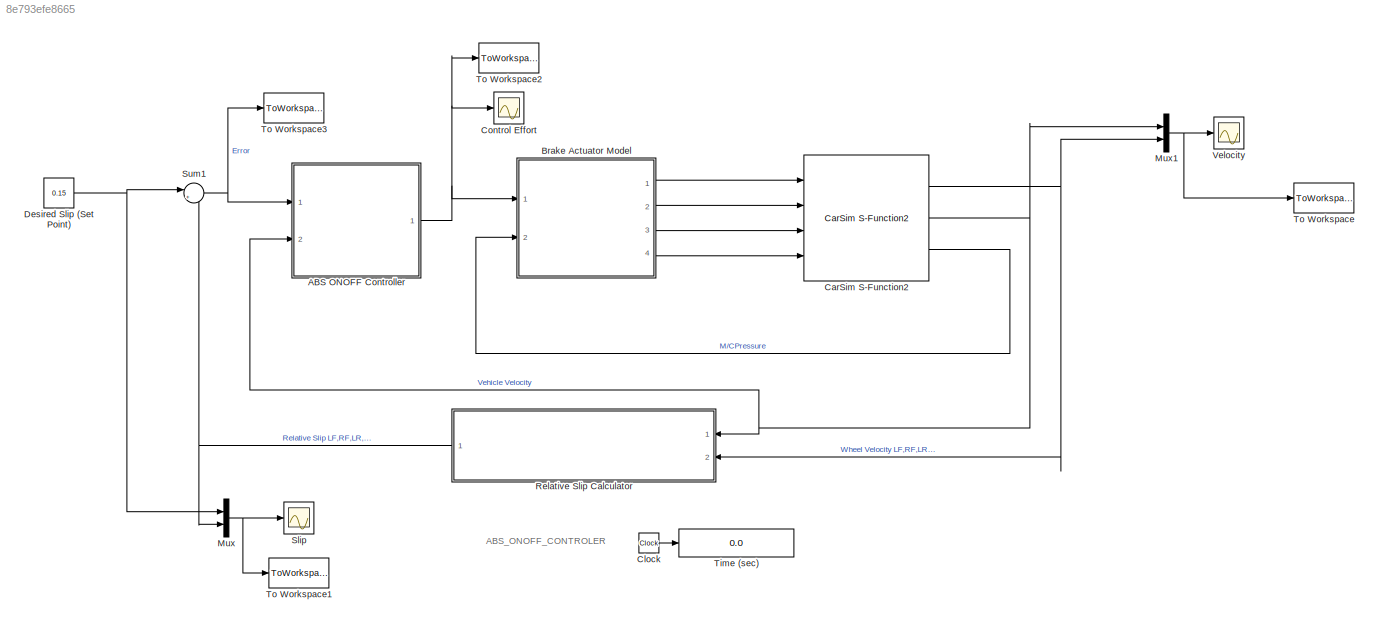
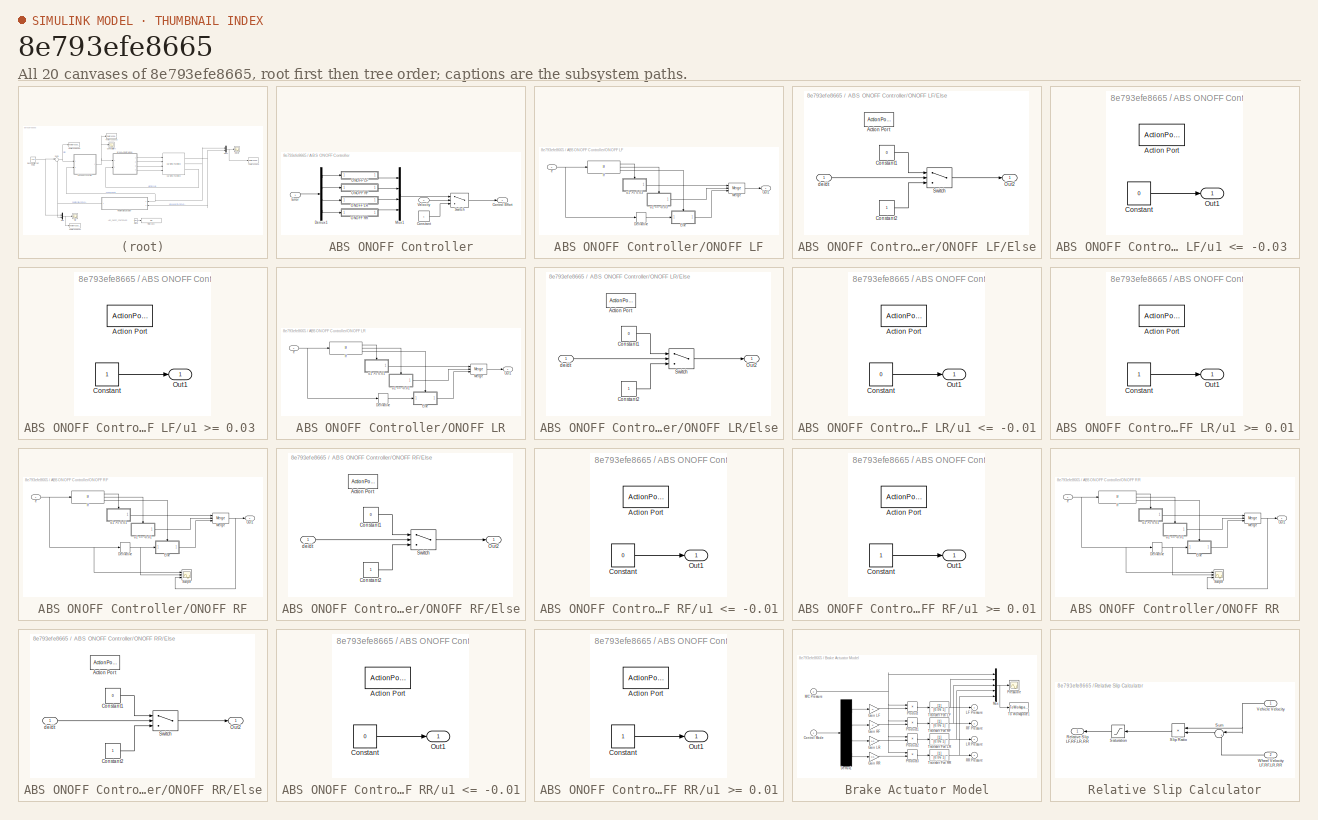
[diagram: thumbnail index - all 20 canvases of the model, root first then tree order]
MODEL slx_8e793efe8665
KIND model
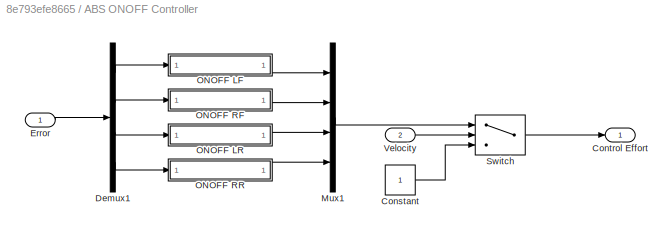
BLOCK [SubSystem] ABS ONOFF Controller
  Ports = [2, 1]
  RequestExecContextInheritance = off
BLOCK [Constant] ABS ONOFF Controller/Constant
BLOCK [Outport] ABS ONOFF Controller/Control Effort
  IconDisplay = Port number
BLOCK [Demux] ABS ONOFF Controller/Demux1
  Ports = [1, 4]
BLOCK [Inport] ABS ONOFF Controller/Error
  IconDisplay = Port number
BLOCK [Mux] ABS ONOFF Controller/Mux1
  DisplayOption = bar
  Ports = [4, 1]
BLOCK [SubSystem] ABS ONOFF Controller/ONOFF LF
  Ports = [1, 1]
  RequestExecContextInheritance = off
BLOCK [Derivative] ABS ONOFF Controller/ONOFF LF/Derivative
BLOCK [SubSystem] ABS ONOFF Controller/ONOFF LF/Else
  Ports = [1, 1, 0, 0, 0, 0, 0, 1]
  RequestExecContextInheritance = off
  TreatAsAtomicUnit = on
BLOCK [ActionPort] ABS ONOFF Controller/ONOFF LF/Else/Action Port
  ActionType = else
BLOCK [Constant] ABS ONOFF Controller/ONOFF LF/Else/Constant1
  Value = 0
BLOCK [Constant] ABS ONOFF Controller/ONOFF LF/Else/Constant2
BLOCK [Outport] ABS ONOFF Controller/ONOFF LF/Else/Out2
  IconDisplay = Port number
BLOCK [Switch] ABS ONOFF Controller/ONOFF LF/Else/Switch
  Criteria = u2 > Threshold
  InputSameDT = off
  SaturateOnIntegerOverflow = off
BLOCK [Inport] ABS ONOFF Controller/ONOFF LF/Else/de//dt
  IconDisplay = Port number
BLOCK [If] ABS ONOFF Controller/ONOFF LF/If
  ElseIfExpressions = u1 <= -0.03
  IfExpression = u1 >= 0.03
  Ports = [1, 3]
BLOCK [Merge] ABS ONOFF Controller/ONOFF LF/Merge
  Inputs = 3
  Ports = [3, 1]
BLOCK [Outport] ABS ONOFF Controller/ONOFF LF/Out1
  IconDisplay = Port number
BLOCK [Inport] ABS ONOFF Controller/ONOFF LF/e
  IconDisplay = Port number
BLOCK [SubSystem] ABS ONOFF Controller/ONOFF LF/u1 <= -0.03 
  Ports = [0, 1, 0, 0, 0, 0, 0, 1]
  RequestExecContextInheritance = off
  TreatAsAtomicUnit = on
BLOCK [ActionPort] ABS ONOFF Controller/ONOFF LF/u1 <= -0.03 /Action Port
  ActionType = elseif
BLOCK [Constant] ABS ONOFF Controller/ONOFF LF/u1 <= -0.03 /Constant
  Value = 0
BLOCK [Outport] ABS ONOFF Controller/ONOFF LF/u1 <= -0.03 /Out1
  IconDisplay = Port number
BLOCK [SubSystem] ABS ONOFF Controller/ONOFF LF/u1 >= 0.03 
  Ports = [0, 1, 0, 0, 0, 0, 0, 1]
  RequestExecContextInheritance = off
  TreatAsAtomicUnit = on
BLOCK [ActionPort] ABS ONOFF Controller/ONOFF LF/u1 >= 0.03 /Action Port
  ActionType = then
BLOCK [Constant] ABS ONOFF Controller/ONOFF LF/u1 >= 0.03 /Constant
BLOCK [Outport] ABS ONOFF Controller/ONOFF LF/u1 >= 0.03 /Out1
  IconDisplay = Port number
BLOCK [SubSystem] ABS ONOFF Controller/ONOFF LR
  Ports = [1, 1]
  RequestExecContextInheritance = off
BLOCK [Derivative] ABS ONOFF Controller/ONOFF LR/Derivative
BLOCK [SubSystem] ABS ONOFF Controller/ONOFF LR/Else
  Ports = [1, 1, 0, 0, 0, 0, 0, 1]
  RequestExecContextInheritance = off
  TreatAsAtomicUnit = on
BLOCK [ActionPort] ABS ONOFF Controller/ONOFF LR/Else/Action Port
  ActionType = else
BLOCK [Constant] ABS ONOFF Controller/ONOFF LR/Else/Constant1
  Value = 0
BLOCK [Constant] ABS ONOFF Controller/ONOFF LR/Else/Constant2
BLOCK [Outport] ABS ONOFF Controller/ONOFF LR/Else/Out2
  IconDisplay = Port number
BLOCK [Switch] ABS ONOFF Controller/ONOFF LR/Else/Switch
  Criteria = u2 > Threshold
  InputSameDT = off
  SaturateOnIntegerOverflow = off
BLOCK [Inport] ABS ONOFF Controller/ONOFF LR/Else/de//dt
  IconDisplay = Port number
BLOCK [If] ABS ONOFF Controller/ONOFF LR/If
  ElseIfExpressions = u1 <= -0.05
  IfExpression = u1 >= 0.05
  Ports = [1, 3]
BLOCK [Merge] ABS ONOFF Controller/ONOFF LR/Merge
  Inputs = 3
  Ports = [3, 1]
BLOCK [Outport] ABS ONOFF Controller/ONOFF LR/Out1
  IconDisplay = Port number
BLOCK [Inport] ABS ONOFF Controller/ONOFF LR/e
  IconDisplay = Port number
BLOCK [SubSystem] ABS ONOFF Controller/ONOFF LR/u1 <= -0.01
  Ports = [0, 1, 0, 0, 0, 0, 0, 1]
  RequestExecContextInheritance = off
  TreatAsAtomicUnit = on
BLOCK [ActionPort] ABS ONOFF Controller/ONOFF LR/u1 <= -0.01/Action Port
  ActionType = elseif
BLOCK [Constant] ABS ONOFF Controller/ONOFF LR/u1 <= -0.01/Constant
  Value = 0
BLOCK [Outport] ABS ONOFF Controller/ONOFF LR/u1 <= -0.01/Out1
  IconDisplay = Port number
BLOCK [SubSystem] ABS ONOFF Controller/ONOFF LR/u1 >= 0.01
  Ports = [0, 1, 0, 0, 0, 0, 0, 1]
  RequestExecContextInheritance = off
  TreatAsAtomicUnit = on
BLOCK [ActionPort] ABS ONOFF Controller/ONOFF LR/u1 >= 0.01/Action Port
  ActionType = then
BLOCK [Constant] ABS ONOFF Controller/ONOFF LR/u1 >= 0.01/Constant
BLOCK [Outport] ABS ONOFF Controller/ONOFF LR/u1 >= 0.01/Out1
  IconDisplay = Port number
BLOCK [SubSystem] ABS ONOFF Controller/ONOFF RF
  Ports = [1, 1]
  RequestExecContextInheritance = off
BLOCK [Derivative] ABS ONOFF Controller/ONOFF RF/Derivative
BLOCK [SubSystem] ABS ONOFF Controller/ONOFF RF/Else
  Ports = [1, 1, 0, 0, 0, 0, 0, 1]
  RequestExecContextInheritance = off
  TreatAsAtomicUnit = on
BLOCK [ActionPort] ABS ONOFF Controller/ONOFF RF/Else/Action Port
  ActionType = else
BLOCK [Constant] ABS ONOFF Controller/ONOFF RF/Else/Constant1
  Value = 0
BLOCK [Constant] ABS ONOFF Controller/ONOFF RF/Else/Constant2
BLOCK [Outport] ABS ONOFF Controller/ONOFF RF/Else/Out2
  IconDisplay = Port number
BLOCK [Switch] ABS ONOFF Controller/ONOFF RF/Else/Switch
  Criteria = u2 > Threshold
  InputSameDT = off
  SaturateOnIntegerOverflow = off
BLOCK [Inport] ABS ONOFF Controller/ONOFF RF/Else/de//dt
  IconDisplay = Port number
BLOCK [If] ABS ONOFF Controller/ONOFF RF/If
  ElseIfExpressions = u1 <= -0.05
  IfExpression = u1 >= 0.05
  Ports = [1, 3]
BLOCK [Merge] ABS ONOFF Controller/ONOFF RF/Merge
  Inputs = 3
  Ports = [3, 1]
BLOCK [Outport] ABS ONOFF Controller/ONOFF RF/Out1
  IconDisplay = Port number
BLOCK [Scope] ABS ONOFF Controller/ONOFF RF/Scope
  DataFormat = StructureWithTime
  Floating = off
  LimitDataPoints = off
  NumInputPorts = 3
  Ports = [3]
  SampleTime = 0
  SaveName = ScopeData2
  ShowLegends = off
  YMax = 0.2~0.005~1
  YMin = -0.15~-0.012~1
BLOCK [Inport] ABS ONOFF Controller/ONOFF RF/e
  IconDisplay = Port number
BLOCK [SubSystem] ABS ONOFF Controller/ONOFF RF/u1 <= -0.01
  Ports = [0, 1, 0, 0, 0, 0, 0, 1]
  RequestExecContextInheritance = off
  TreatAsAtomicUnit = on
BLOCK [ActionPort] ABS ONOFF Controller/ONOFF RF/u1 <= -0.01/Action Port
  ActionType = elseif
BLOCK [Constant] ABS ONOFF Controller/ONOFF RF/u1 <= -0.01/Constant
  Value = 0
BLOCK [Outport] ABS ONOFF Controller/ONOFF RF/u1 <= -0.01/Out1
  IconDisplay = Port number
BLOCK [SubSystem] ABS ONOFF Controller/ONOFF RF/u1 >= 0.01
  Ports = [0, 1, 0, 0, 0, 0, 0, 1]
  RequestExecContextInheritance = off
  TreatAsAtomicUnit = on
BLOCK [ActionPort] ABS ONOFF Controller/ONOFF RF/u1 >= 0.01/Action Port
  ActionType = then
BLOCK [Constant] ABS ONOFF Controller/ONOFF RF/u1 >= 0.01/Constant
BLOCK [Outport] ABS ONOFF Controller/ONOFF RF/u1 >= 0.01/Out1
  IconDisplay = Port number
BLOCK [SubSystem] ABS ONOFF Controller/ONOFF RR
  Ports = [1, 1]
  RequestExecContextInheritance = off
BLOCK [Derivative] ABS ONOFF Controller/ONOFF RR/Derivative
BLOCK [SubSystem] ABS ONOFF Controller/ONOFF RR/Else
  Ports = [1, 1, 0, 0, 0, 0, 0, 1]
  RequestExecContextInheritance = off
  TreatAsAtomicUnit = on
BLOCK [ActionPort] ABS ONOFF Controller/ONOFF RR/Else/Action Port
  ActionType = else
BLOCK [Constant] ABS ONOFF Controller/ONOFF RR/Else/Constant1
  Value = 0
BLOCK [Constant] ABS ONOFF Controller/ONOFF RR/Else/Constant2
BLOCK [Outport] ABS ONOFF Controller/ONOFF RR/Else/Out2
  IconDisplay = Port number
BLOCK [Switch] ABS ONOFF Controller/ONOFF RR/Else/Switch
  Criteria = u2 > Threshold
  InputSameDT = off
  SaturateOnIntegerOverflow = off
BLOCK [Inport] ABS ONOFF Controller/ONOFF RR/Else/de//dt
  IconDisplay = Port number
BLOCK [If] ABS ONOFF Controller/ONOFF RR/If
  ElseIfExpressions = u1 <= -0.05
  IfExpression = u1 >= 0.05
  Ports = [1, 3]
BLOCK [Merge] ABS ONOFF Controller/ONOFF RR/Merge
  Inputs = 3
  Ports = [3, 1]
BLOCK [Outport] ABS ONOFF Controller/ONOFF RR/Out1
  IconDisplay = Port number
BLOCK [Scope] ABS ONOFF Controller/ONOFF RR/Scope
  DataFormat = StructureWithTime
  Floating = off
  LimitDataPoints = off
  NumInputPorts = 3
  Ports = [3]
  SampleTime = 0
  SaveName = ScopeData2
  ShowLegends = off
  YMax = 0.2~0.005~1.05
  YMin = -0.15~-0.012~0.95
BLOCK [Inport] ABS ONOFF Controller/ONOFF RR/e
  IconDisplay = Port number
BLOCK [SubSystem] ABS ONOFF Controller/ONOFF RR/u1 <= -0.01
  Ports = [0, 1, 0, 0, 0, 0, 0, 1]
  RequestExecContextInheritance = off
  TreatAsAtomicUnit = on
BLOCK [ActionPort] ABS ONOFF Controller/ONOFF RR/u1 <= -0.01/Action Port
  ActionType = elseif
BLOCK [Constant] ABS ONOFF Controller/ONOFF RR/u1 <= -0.01/Constant
  Value = 0
BLOCK [Outport] ABS ONOFF Controller/ONOFF RR/u1 <= -0.01/Out1
  IconDisplay = Port number
BLOCK [SubSystem] ABS ONOFF Controller/ONOFF RR/u1 >= 0.01
  Ports = [0, 1, 0, 0, 0, 0, 0, 1]
  RequestExecContextInheritance = off
  TreatAsAtomicUnit = on
BLOCK [ActionPort] ABS ONOFF Controller/ONOFF RR/u1 >= 0.01/Action Port
  ActionType = then
BLOCK [Constant] ABS ONOFF Controller/ONOFF RR/u1 >= 0.01/Constant
BLOCK [Outport] ABS ONOFF Controller/ONOFF RR/u1 >= 0.01/Out1
  IconDisplay = Port number
BLOCK [Switch] ABS ONOFF Controller/Switch
  Criteria = u2 > Threshold
  InputSameDT = off
  SaturateOnIntegerOverflow = off
  Threshold = 3
BLOCK [Inport] ABS ONOFF Controller/Velocity
  IconDisplay = Port number
  Port = 2
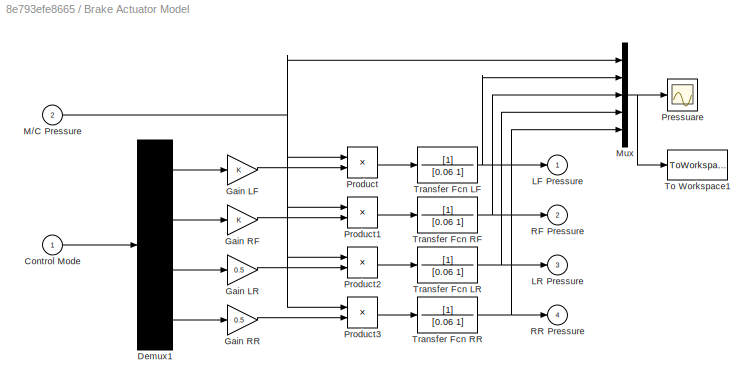
BLOCK [SubSystem] Brake Actuator Model
  Ports = [2, 4]
  RequestExecContextInheritance = off
BLOCK [Inport] Brake Actuator Model/Control Mode
  IconDisplay = Port number
BLOCK [Demux] Brake Actuator Model/Demux1
  Ports = [1, 4]
BLOCK [Gain] Brake Actuator Model/Gain LF
BLOCK [Gain] Brake Actuator Model/Gain LR
  Gain = 0.5
BLOCK [Gain] Brake Actuator Model/Gain RF
BLOCK [Gain] Brake Actuator Model/Gain RR
  Gain = 0.5
BLOCK [Outport] Brake Actuator Model/LF Pressure
  IconDisplay = Port number
  InitialOutput = 0
BLOCK [Outport] Brake Actuator Model/LR Pressure
  IconDisplay = Port number
  InitialOutput = 0
  Port = 3
BLOCK [Inport] Brake Actuator Model/M//C Pressure
  IconDisplay = Port number
  Port = 2
BLOCK [Mux] Brake Actuator Model/Mux
  DisplayOption = bar
  Inputs = 5
  Ports = [5, 1]
BLOCK [Scope] Brake Actuator Model/Pressuare
  Floating = off
  LimitDataPoints = off
  NumInputPorts = 1
  Ports = [1]
  SaveName = ScopeData9
  ShowLegends = on
BLOCK [Product] Brake Actuator Model/Product
  Ports = [2, 1]
  RndMeth = Floor
BLOCK [Product] Brake Actuator Model/Product1
  Ports = [2, 1]
  RndMeth = Floor
BLOCK [Product] Brake Actuator Model/Product2
  Ports = [2, 1]
  RndMeth = Floor
BLOCK [Product] Brake Actuator Model/Product3
  Ports = [2, 1]
  RndMeth = Floor
BLOCK [Outport] Brake Actuator Model/RF Pressure
  IconDisplay = Port number
  InitialOutput = 0
  Port = 2
BLOCK [Outport] Brake Actuator Model/RR Pressure
  IconDisplay = Port number
  InitialOutput = 0
  Port = 4
BLOCK [ToWorkspace] Brake Actuator Model/To Workspace1
  FixptAsFi = on
  MaxDataPoints = inf
  Ports = [1]
  SampleTime = 0.002
  Save2DSignal = 3-D array (concatenate along third dimension)
  SaveFormat = Timeseries
  VariableName = P
BLOCK [TransferFcn] Brake Actuator Model/Transfer Fcn LF
  Denominator = [0.06 1]
BLOCK [TransferFcn] Brake Actuator Model/Transfer Fcn LR
  Denominator = [0.06 1]
BLOCK [TransferFcn] Brake Actuator Model/Transfer Fcn RF
  Denominator = [0.06 1]
BLOCK [TransferFcn] Brake Actuator Model/Transfer Fcn RR
  Denominator = [0.06 1]
BLOCK [Reference] CarSim S-Function2  REF=Solver_SF/CarSim S-Function2
  AttributesFormatString = Vehicle Code: %<VehicleCode>
  Ports = [4, 3]
  Priority = 1
  SIMFILE = simfile.sim
  SourceBlock = Solver_SF/CarSim S-Function2
  SourceType = Vehicle math model library
  VehicleCode = i_i
BLOCK [Clock] Clock
BLOCK [Scope] Control Effort
  DataFormat = StructureWithTime
  Floating = off
  MaxDataPoints = 50000
  NumInputPorts = 1
  Ports = [1]
  SampleTime = 0
  SaveName = ScopeData3
  ShowLegends = on
  TimeRange = 7
  YMax = 1
  YMin = 0
BLOCK [Constant] Desired Slip (Set Point) 
  Value = 0.15
BLOCK [Mux] Mux
  DisplayOption = bar
  Inputs = 2
  Ports = [2, 1]
BLOCK [Mux] Mux1
  DisplayOption = bar
  Inputs = 2
  Ports = [2, 1]
BLOCK [SubSystem] Relative Slip Calculator
  Ports = [2, 1]
  RequestExecContextInheritance = off
BLOCK [Outport] Relative Slip Calculator/Relative Slip LF,RF,LR,RR
  IconDisplay = Port number
BLOCK [Saturate] Relative Slip Calculator/Saturation
  InputPortMap = u0
  LowerLimit = 0
  Ports = [1, 1]
  UpperLimit = 1
BLOCK [Product] Relative Slip Calculator/Slip Ratio
  Inputs = /*
  Ports = [2, 1]
  RndMeth = Floor
BLOCK [Sum] Relative Slip Calculator/Sum
  IconShape = round
  InputSameDT = off
  Inputs = |+-
  OutDataTypeStr = Inherit: Inherit via internal rule
  Ports = [2, 1]
  SaturateOnIntegerOverflow = off
BLOCK [Inport] Relative Slip Calculator/Vehicle Velocity
  IconDisplay = Port number
BLOCK [Inport] Relative Slip Calculator/Wheel Velocity LF,RF,LR,RR
  IconDisplay = Port number
  Port = 2
BLOCK [Scope] Slip
  DataFormat = StructureWithTime
  Floating = off
  MaxDataPoints = 50000
  NumInputPorts = 1
  Ports = [1]
  SampleTime = 0
  ShowLegends = on
  TimeRange = 7
  YMax = 1
  YMin = 0
BLOCK [Sum] Sum1
  IconShape = round
  InputSameDT = off
  Inputs = |+-
  OutDataTypeStr = Inherit: Inherit via internal rule
  Ports = [2, 1]
  SaturateOnIntegerOverflow = off
BLOCK [Display] Time (sec)
  Decimation = 100
  Format = bank
  Ports = [1]
BLOCK [ToWorkspace] To Workspace
  FixptAsFi = on
  MaxDataPoints = inf
  Ports = [1]
  SampleTime = 0.002
  Save2DSignal = 3-D array (concatenate along third dimension)
  SaveFormat = Timeseries
  VariableName = V
BLOCK [ToWorkspace] To Workspace1
  FixptAsFi = on
  MaxDataPoints = inf
  Ports = [1]
  SampleTime = 0.002
  Save2DSignal = 3-D array (concatenate along third dimension)
  SaveFormat = Timeseries
  VariableName = S
BLOCK [ToWorkspace] To Workspace2
  FixptAsFi = on
  MaxDataPoints = inf
  Ports = [1]
  SampleTime = 0.002
  Save2DSignal = 3-D array (concatenate along third dimension)
  SaveFormat = Timeseries
  VariableName = U
BLOCK [ToWorkspace] To Workspace3
  FixptAsFi = on
  MaxDataPoints = inf
  Ports = [1]
  SampleTime = 0.002
  Save2DSignal = 3-D array (concatenate along third dimension)
  SaveFormat = Timeseries
  VariableName = E
BLOCK [Scope] Velocity
  DataFormat = StructureWithTime
  Floating = off
  MaxDataPoints = 50000
  NumInputPorts = 1
  Ports = [1]
  SampleTime = 0
  SaveName = ScopeData1
  ShowLegends = on
  YMax = 65
ANNOTATION (root): ABS_ONOFF_CONTROLER
LINE ABS ONOFF Controller/Constant:1 -> ABS ONOFF Controller/Switch:3
LINE ABS ONOFF Controller/Demux1:1 -> ABS ONOFF Controller/ONOFF LF:1
LINE ABS ONOFF Controller/Demux1:2 -> ABS ONOFF Controller/ONOFF RF:1
LINE ABS ONOFF Controller/Demux1:3 -> ABS ONOFF Controller/ONOFF LR:1
LINE ABS ONOFF Controller/Demux1:4 -> ABS ONOFF Controller/ONOFF RR:1
LINE ABS ONOFF Controller/Error:1 -> ABS ONOFF Controller/Demux1:1
LINE ABS ONOFF Controller/Mux1:1 -> ABS ONOFF Controller/Switch:1
LINE ABS ONOFF Controller/ONOFF LF/Derivative:1 -> ABS ONOFF Controller/ONOFF LF/Else:1
LINE ABS ONOFF Controller/ONOFF LF/Else/Constant1:1 -> ABS ONOFF Controller/ONOFF LF/Else/Switch:1
LINE ABS ONOFF Controller/ONOFF LF/Else/Constant2:1 -> ABS ONOFF Controller/ONOFF LF/Else/Switch:3
LINE ABS ONOFF Controller/ONOFF LF/Else/Switch:1 -> ABS ONOFF Controller/ONOFF LF/Else/Out2:1
LINE ABS ONOFF Controller/ONOFF LF/Else/de//dt:1 -> ABS ONOFF Controller/ONOFF LF/Else/Switch:2
LINE ABS ONOFF Controller/ONOFF LF/Else:1 -> ABS ONOFF Controller/ONOFF LF/Merge:3
LINE ABS ONOFF Controller/ONOFF LF/If:1 -> ABS ONOFF Controller/ONOFF LF/u1 >= 0.03 :ifaction
LINE ABS ONOFF Controller/ONOFF LF/If:2 -> ABS ONOFF Controller/ONOFF LF/u1 <= -0.03 :ifaction
LINE ABS ONOFF Controller/ONOFF LF/If:3 -> ABS ONOFF Controller/ONOFF LF/Else:ifaction
LINE ABS ONOFF Controller/ONOFF LF/Merge:1 -> ABS ONOFF Controller/ONOFF LF/Out1:1
NET ABS ONOFF Controller/ONOFF LF/e:1 -> ABS ONOFF Controller/ONOFF LF/Derivative:1, ABS ONOFF Controller/ONOFF LF/If:1
LINE ABS ONOFF Controller/ONOFF LF/u1 <= -0.03 /Constant:1 -> ABS ONOFF Controller/ONOFF LF/u1 <= -0.03 /Out1:1
LINE ABS ONOFF Controller/ONOFF LF/u1 <= -0.03 :1 -> ABS ONOFF Controller/ONOFF LF/Merge:2
LINE ABS ONOFF Controller/ONOFF LF/u1 >= 0.03 /Constant:1 -> ABS ONOFF Controller/ONOFF LF/u1 >= 0.03 /Out1:1
LINE ABS ONOFF Controller/ONOFF LF/u1 >= 0.03 :1 -> ABS ONOFF Controller/ONOFF LF/Merge:1
LINE ABS ONOFF Controller/ONOFF LF:1 -> ABS ONOFF Controller/Mux1:1
LINE ABS ONOFF Controller/ONOFF LR/Derivative:1 -> ABS ONOFF Controller/ONOFF LR/Else:1
LINE ABS ONOFF Controller/ONOFF LR/Else/Constant1:1 -> ABS ONOFF Controller/ONOFF LR/Else/Switch:1
LINE ABS ONOFF Controller/ONOFF LR/Else/Constant2:1 -> ABS ONOFF Controller/ONOFF LR/Else/Switch:3
LINE ABS ONOFF Controller/ONOFF LR/Else/Switch:1 -> ABS ONOFF Controller/ONOFF LR/Else/Out2:1
LINE ABS ONOFF Controller/ONOFF LR/Else/de//dt:1 -> ABS ONOFF Controller/ONOFF LR/Else/Switch:2
LINE ABS ONOFF Controller/ONOFF LR/Else:1 -> ABS ONOFF Controller/ONOFF LR/Merge:3
LINE ABS ONOFF Controller/ONOFF LR/If:1 -> ABS ONOFF Controller/ONOFF LR/u1 >= 0.01:ifaction
LINE ABS ONOFF Controller/ONOFF LR/If:2 -> ABS ONOFF Controller/ONOFF LR/u1 <= -0.01:ifaction
LINE ABS ONOFF Controller/ONOFF LR/If:3 -> ABS ONOFF Controller/ONOFF LR/Else:ifaction
LINE ABS ONOFF Controller/ONOFF LR/Merge:1 -> ABS ONOFF Controller/ONOFF LR/Out1:1
NET ABS ONOFF Controller/ONOFF LR/e:1 -> ABS ONOFF Controller/ONOFF LR/Derivative:1, ABS ONOFF Controller/ONOFF LR/If:1
LINE ABS ONOFF Controller/ONOFF LR/u1 <= -0.01/Constant:1 -> ABS ONOFF Controller/ONOFF LR/u1 <= -0.01/Out1:1
LINE ABS ONOFF Controller/ONOFF LR/u1 <= -0.01:1 -> ABS ONOFF Controller/ONOFF LR/Merge:2
LINE ABS ONOFF Controller/ONOFF LR/u1 >= 0.01/Constant:1 -> ABS ONOFF Controller/ONOFF LR/u1 >= 0.01/Out1:1
LINE ABS ONOFF Controller/ONOFF LR/u1 >= 0.01:1 -> ABS ONOFF Controller/ONOFF LR/Merge:1
LINE ABS ONOFF Controller/ONOFF LR:1 -> ABS ONOFF Controller/Mux1:3
NET ABS ONOFF Controller/ONOFF RF/Derivative:1 -> ABS ONOFF Controller/ONOFF RF/Else:1, ABS ONOFF Controller/ONOFF RF/Scope:2
LINE ABS ONOFF Controller/ONOFF RF/Else/Constant1:1 -> ABS ONOFF Controller/ONOFF RF/Else/Switch:1
LINE ABS ONOFF Controller/ONOFF RF/Else/Constant2:1 -> ABS ONOFF Controller/ONOFF RF/Else/Switch:3
LINE ABS ONOFF Controller/ONOFF RF/Else/Switch:1 -> ABS ONOFF Controller/ONOFF RF/Else/Out2:1
LINE ABS ONOFF Controller/ONOFF RF/Else/de//dt:1 -> ABS ONOFF Controller/ONOFF RF/Else/Switch:2
LINE ABS ONOFF Controller/ONOFF RF/Else:1 -> ABS ONOFF Controller/ONOFF RF/Merge:3
LINE ABS ONOFF Controller/ONOFF RF/If:1 -> ABS ONOFF Controller/ONOFF RF/u1 >= 0.01:ifaction
LINE ABS ONOFF Controller/ONOFF RF/If:2 -> ABS ONOFF Controller/ONOFF RF/u1 <= -0.01:ifaction
LINE ABS ONOFF Controller/ONOFF RF/If:3 -> ABS ONOFF Controller/ONOFF RF/Else:ifaction
NET ABS ONOFF Controller/ONOFF RF/Merge:1 -> ABS ONOFF Controller/ONOFF RF/Out1:1, ABS ONOFF Controller/ONOFF RF/Scope:3
NET ABS ONOFF Controller/ONOFF RF/e:1 -> ABS ONOFF Controller/ONOFF RF/Derivative:1, ABS ONOFF Controller/ONOFF RF/If:1, ABS ONOFF Controller/ONOFF RF/Scope:1
LINE ABS ONOFF Controller/ONOFF RF/u1 <= -0.01/Constant:1 -> ABS ONOFF Controller/ONOFF RF/u1 <= -0.01/Out1:1
LINE ABS ONOFF Controller/ONOFF RF/u1 <= -0.01:1 -> ABS ONOFF Controller/ONOFF RF/Merge:2
LINE ABS ONOFF Controller/ONOFF RF/u1 >= 0.01/Constant:1 -> ABS ONOFF Controller/ONOFF RF/u1 >= 0.01/Out1:1
LINE ABS ONOFF Controller/ONOFF RF/u1 >= 0.01:1 -> ABS ONOFF Controller/ONOFF RF/Merge:1
LINE ABS ONOFF Controller/ONOFF RF:1 -> ABS ONOFF Controller/Mux1:2
NET ABS ONOFF Controller/ONOFF RR/Derivative:1 -> ABS ONOFF Controller/ONOFF RR/Else:1, ABS ONOFF Controller/ONOFF RR/Scope:2
LINE ABS ONOFF Controller/ONOFF RR/Else/Constant1:1 -> ABS ONOFF Controller/ONOFF RR/Else/Switch:1
LINE ABS ONOFF Controller/ONOFF RR/Else/Constant2:1 -> ABS ONOFF Controller/ONOFF RR/Else/Switch:3
LINE ABS ONOFF Controller/ONOFF RR/Else/Switch:1 -> ABS ONOFF Controller/ONOFF RR/Else/Out2:1
LINE ABS ONOFF Controller/ONOFF RR/Else/de//dt:1 -> ABS ONOFF Controller/ONOFF RR/Else/Switch:2
LINE ABS ONOFF Controller/ONOFF RR/Else:1 -> ABS ONOFF Controller/ONOFF RR/Merge:3
LINE ABS ONOFF Controller/ONOFF RR/If:1 -> ABS ONOFF Controller/ONOFF RR/u1 >= 0.01:ifaction
LINE ABS ONOFF Controller/ONOFF RR/If:2 -> ABS ONOFF Controller/ONOFF RR/u1 <= -0.01:ifaction
LINE ABS ONOFF Controller/ONOFF RR/If:3 -> ABS ONOFF Controller/ONOFF RR/Else:ifaction
NET ABS ONOFF Controller/ONOFF RR/Merge:1 -> ABS ONOFF Controller/ONOFF RR/Out1:1, ABS ONOFF Controller/ONOFF RR/Scope:3
NET ABS ONOFF Controller/ONOFF RR/e:1 -> ABS ONOFF Controller/ONOFF RR/Derivative:1, ABS ONOFF Controller/ONOFF RR/If:1, ABS ONOFF Controller/ONOFF RR/Scope:1
LINE ABS ONOFF Controller/ONOFF RR/u1 <= -0.01/Constant:1 -> ABS ONOFF Controller/ONOFF RR/u1 <= -0.01/Out1:1
LINE ABS ONOFF Controller/ONOFF RR/u1 <= -0.01:1 -> ABS ONOFF Controller/ONOFF RR/Merge:2
LINE ABS ONOFF Controller/ONOFF RR/u1 >= 0.01/Constant:1 -> ABS ONOFF Controller/ONOFF RR/u1 >= 0.01/Out1:1
LINE ABS ONOFF Controller/ONOFF RR/u1 >= 0.01:1 -> ABS ONOFF Controller/ONOFF RR/Merge:1
LINE ABS ONOFF Controller/ONOFF RR:1 -> ABS ONOFF Controller/Mux1:4
LINE ABS ONOFF Controller/Switch:1 -> ABS ONOFF Controller/Control Effort:1
LINE ABS ONOFF Controller/Velocity:1 -> ABS ONOFF Controller/Switch:2
NET ABS ONOFF Controller:1 -> Brake Actuator Model:1, Control Effort:1, To Workspace2:1
LINE Brake Actuator Model/Control Mode:1 -> Brake Actuator Model/Demux1:1
LINE Brake Actuator Model/Demux1:1 -> Brake Actuator Model/Gain LF:1
LINE Brake Actuator Model/Demux1:2 -> Brake Actuator Model/Gain RF:1
LINE Brake Actuator Model/Demux1:3 -> Brake Actuator Model/Gain LR:1
LINE Brake Actuator Model/Demux1:4 -> Brake Actuator Model/Gain RR:1
LINE Brake Actuator Model/Gain LF:1 -> Brake Actuator Model/Product:2
LINE Brake Actuator Model/Gain LR:1 -> Brake Actuator Model/Product2:2
LINE Brake Actuator Model/Gain RF:1 -> Brake Actuator Model/Product1:2
LINE Brake Actuator Model/Gain RR:1 -> Brake Actuator Model/Product3:2
NET Brake Actuator Model/M//C Pressure:1 -> Brake Actuator Model/Mux:1, Brake Actuator Model/Product1:1, Brake Actuator Model/Product2:1, Brake Actuator Model/Product3:1, Brake Actuator Model/Product:1
NET Brake Actuator Model/Mux:1 -> Brake Actuator Model/Pressuare:1, Brake Actuator Model/To Workspace1:1
LINE Brake Actuator Model/Product1:1 -> Brake Actuator Model/Transfer Fcn RF:1
LINE Brake Actuator Model/Product2:1 -> Brake Actuator Model/Transfer Fcn LR:1
LINE Brake Actuator Model/Product3:1 -> Brake Actuator Model/Transfer Fcn RR:1
LINE Brake Actuator Model/Product:1 -> Brake Actuator Model/Transfer Fcn LF:1
NET Brake Actuator Model/Transfer Fcn LF:1 -> Brake Actuator Model/LF Pressure:1, Brake Actuator Model/Mux:2
NET Brake Actuator Model/Transfer Fcn LR:1 -> Brake Actuator Model/LR Pressure:1, Brake Actuator Model/Mux:4
NET Brake Actuator Model/Transfer Fcn RF:1 -> Brake Actuator Model/Mux:3, Brake Actuator Model/RF Pressure:1
NET Brake Actuator Model/Transfer Fcn RR:1 -> Brake Actuator Model/Mux:5, Brake Actuator Model/RR Pressure:1
LINE Brake Actuator Model:1 -> CarSim S-Function2:1
LINE Brake Actuator Model:2 -> CarSim S-Function2:2
LINE Brake Actuator Model:3 -> CarSim S-Function2:3
LINE Brake Actuator Model:4 -> CarSim S-Function2:4
NET CarSim S-Function2:1 -> Mux1:2, Relative Slip Calculator:2
NET CarSim S-Function2:2 -> ABS ONOFF Controller:2, Mux1:1, Relative Slip Calculator:1
LINE CarSim S-Function2:3 -> Brake Actuator Model:2
LINE Clock:1 -> Time (sec):1
NET Desired Slip (Set Point) :1 -> Mux:1, Sum1:1
NET Mux1:1 -> To Workspace:1, Velocity:1
NET Mux:1 -> Slip:1, To Workspace1:1
LINE Relative Slip Calculator/Saturation:1 -> Relative Slip Calculator/Relative Slip LF,RF,LR,RR:1
LINE Relative Slip Calculator/Slip Ratio:1 -> Relative Slip Calculator/Saturation:1
LINE Relative Slip Calculator/Sum:1 -> Relative Slip Calculator/Slip Ratio:2
NET Relative Slip Calculator/Vehicle Velocity:1 -> Relative Slip Calculator/Slip Ratio:1, Relative Slip Calculator/Sum:1
LINE Relative Slip Calculator/Wheel Velocity LF,RF,LR,RR:1 -> Relative Slip Calculator/Sum:2
NET Relative Slip Calculator:1 -> Mux:2, Sum1:2
NET Sum1:1 -> ABS ONOFF Controller:1, To Workspace3:1
note: NET lines group one-source signal fan-out (src -> all destinations, sorted); 1:1 wires keep LINE
